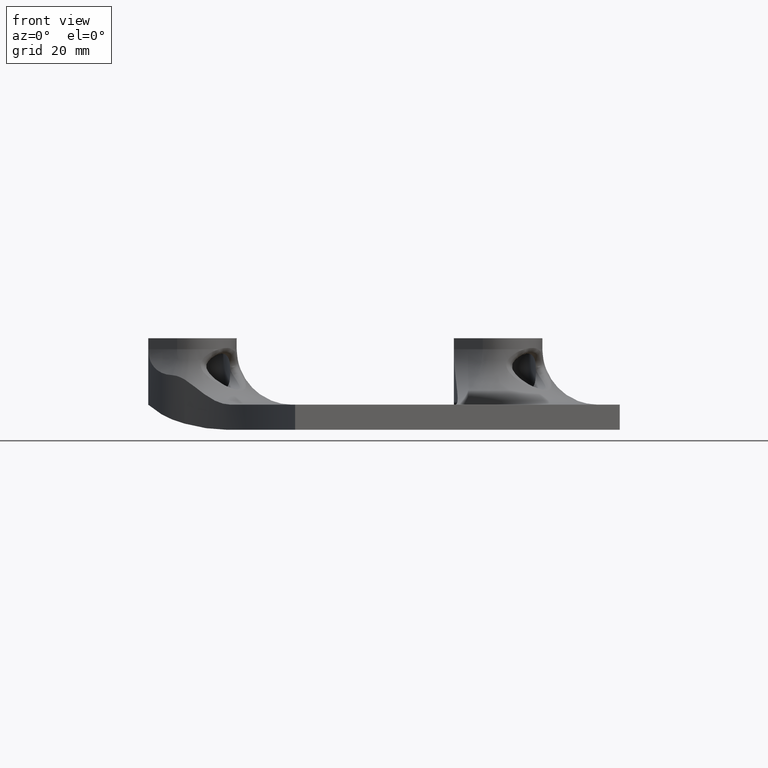
[diagram: clean part render]
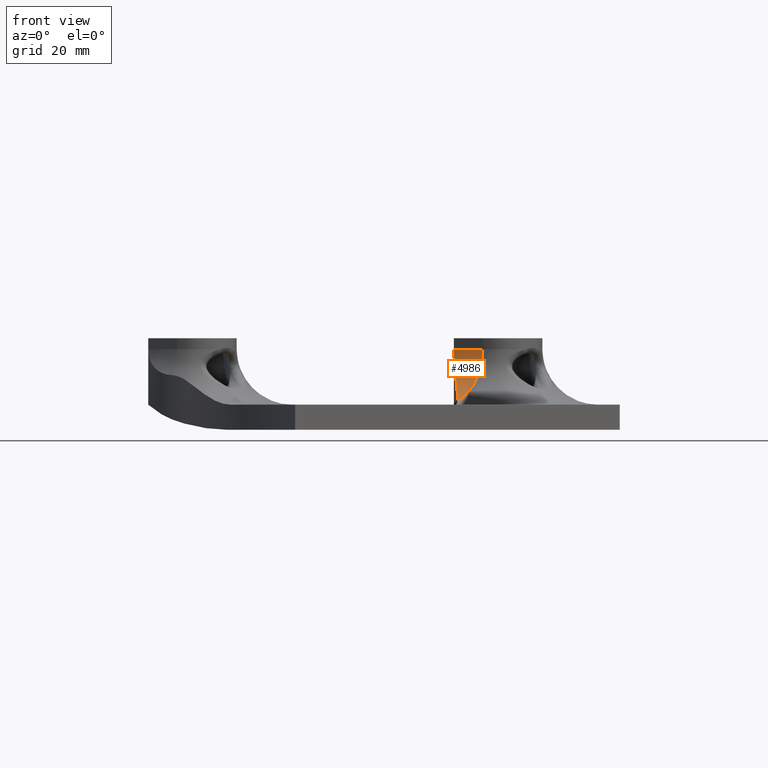
[diagram: same view with one face highlighted and labeled with its STEP entity id]
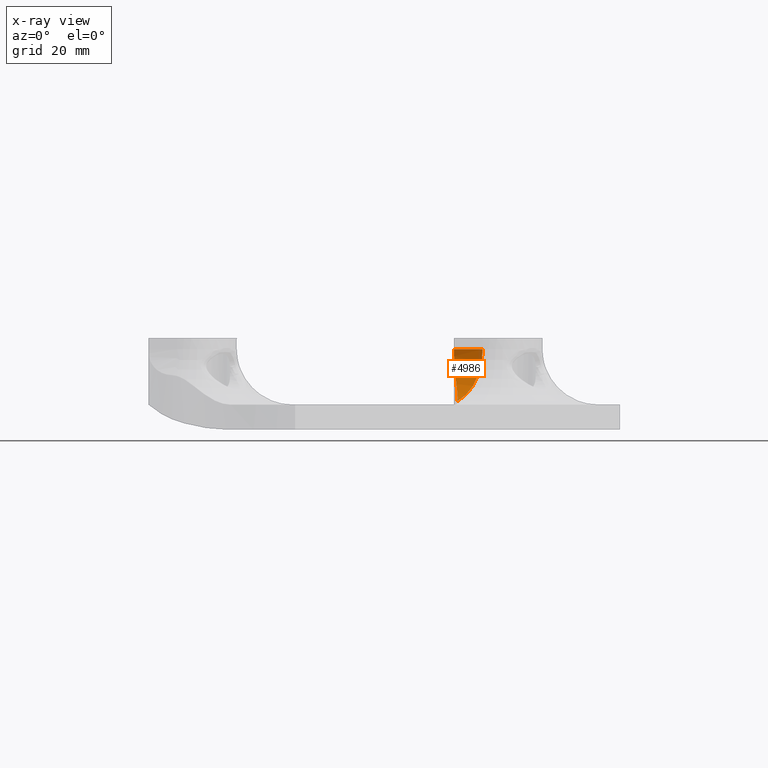
[diagram: x-ray of the same camera — body ghosted, the highlighted face saturated]
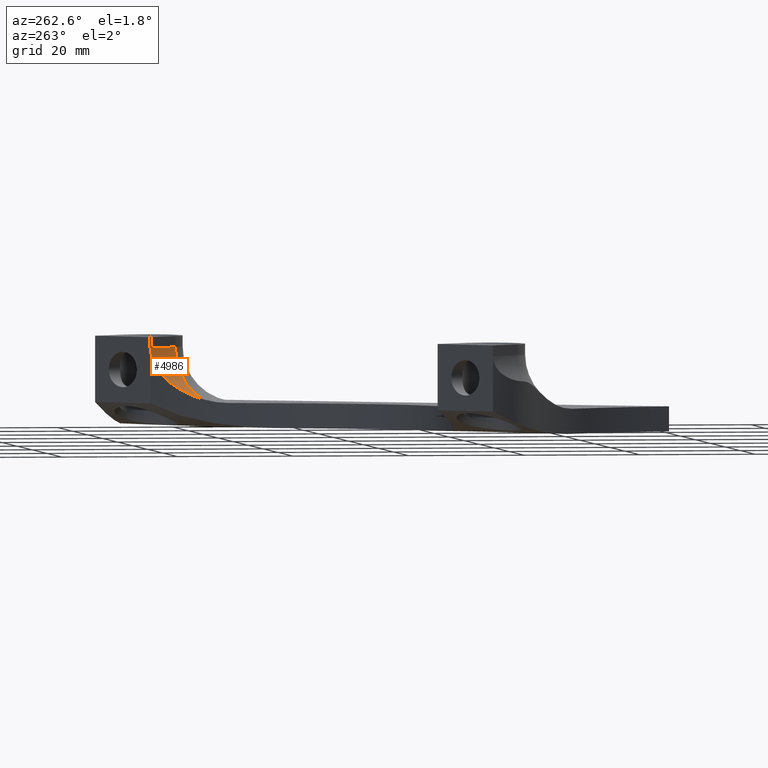
[diagram: same view with one face highlighted and labeled with its STEP entity id]
A machine part, front view. The second image highlights one B-rep face of the part: STEP entity #4986.
The next image is the same camera in x-ray: the body ghosted, the highlighted face saturated — about 0% of this face is hidden behind the body in this view.
A second angle (auxiliary view) of the same face is appended — the face is thin or edge-on in the first view.
In plain terms, the highlighted cylindrical surface (partial cylindrical patch) has radius 9.525 mm, axis along (-0.7071, 0.7071, 0).
Its self-contained STEP definition (entity closure, byte-faithful):
#752 = DIRECTION ( 'NONE',  ( -0.7071067811865470200, 0.7071067811865480200, 0.0000000000000000000 ) ) ;
#753 = DIRECTION ( 'NONE',  ( -0.7071067811865479100, -0.7071067811865471300, 0.0000000000000000000 ) ) ;
#756 = CARTESIAN_POINT ( 'NONE',  ( 11.71617354886791200, 80.86947227895663600, 9.525000000000003900 ) ) ;
#1345 = B_SPLINE_CURVE_WITH_KNOTS ( 'NONE', 3,
 ( #3640, #3635, #3634, #3633, #3632, #3631, #3630, #3629, #3628, #3627, #4085, #3204, #3203, #3202, #3201, #3200, #3199, #3198, #3197, #3196 ),
 .UNSPECIFIED., .F., .F.,
 ( 4, 2, 2, 2, 2, 2, 2, 2, 2, 4 ),
 ( 1.734723475976807100E-018, 0.001707270467940434800, 0.002560905701910651200, 0.003414540935880867800, 0.004268176169851084800, 0.005121811403821300600, 0.006829081871761707800, 0.008536352339702115900, 0.01024362280764252100, 0.01365816374352333600 ),
 .UNSPECIFIED. ) ;
#2028 = AXIS2_PLACEMENT_3D ( 'NONE', #756, #752, #753 ) ;
#2086 = ORIENTED_EDGE ( 'NONE', *, *, #4494, .T. ) ;
#2124 = ORIENTED_EDGE ( 'NONE', *, *, #4414, .T. ) ;
#2190 = CARTESIAN_POINT ( 'NONE',  ( 18.45136563966989800, 87.60466436975841000, 9.525000000000003900 ) ) ;
#2225 = CARTESIAN_POINT ( 'NONE',  ( 13.50161817136407500, 92.55441183806422600, 9.525000000000003900 ) ) ;
#2263 = CARTESIAN_POINT ( 'NONE',  ( 14.11972925908475900, 83.27302798917340000, 0.6271651568615626000 ) ) ;
#2354 = EDGE_LOOP ( 'NONE', ( #2921, #2086, #2124 ) ) ;
#2409 = CYLINDRICAL_SURFACE ( 'NONE', #2028, 9.525000000000007500 ) ;
#2430 = FACE_OUTER_BOUND ( 'NONE', #2354, .T. ) ;
#2536 = CIRCLE ( 'NONE', #4478, 9.525000000000005700 ) ;
#2559 = VECTOR ( 'NONE', #3763, 1000.000000000000000 ) ;
#2565 = LINE ( 'NONE', #3767, #2559 ) ;
#2921 = ORIENTED_EDGE ( 'NONE', *, *, #4522, .T. ) ;
#3003 = VERTEX_POINT ( 'NONE', #2263 ) ;
#3011 = VERTEX_POINT ( 'NONE', #2225 ) ;
#3030 = VERTEX_POINT ( 'NONE', #2190 ) ;
#3196 = CARTESIAN_POINT ( 'NONE',  ( 14.11972925908475900, 83.27302798917340000, 0.6271651568615626000 ) ) ;
#3197 = CARTESIAN_POINT ( 'NONE',  ( 14.14929892167664600, 84.38209512800317200, 0.9347430153144692400 ) ) ;
#3198 = CARTESIAN_POINT ( 'NONE',  ( 14.14081010131624600, 85.44629533891971100, 1.342319683538194800 ) ) ;
#3199 = CARTESIAN_POINT ( 'NONE',  ( 14.08397107251848000, 86.97392861772425500, 2.107365951750405300 ) ) ;
#3200 = CARTESIAN_POINT ( 'NONE',  ( 14.05762579370145500, 87.47188606967020500, 2.388638645891186600 ) ) ;
#3201 = CARTESIAN_POINT ( 'NONE',  ( 13.99263436131428100, 88.43968587821819900, 3.009976997566904600 ) ) ;
#3202 = CARTESIAN_POINT ( 'NONE',  ( 13.95451134026898300, 88.90188569264913100, 3.345058033734472400 ) ) ;
#3203 = CARTESIAN_POINT ( 'NONE',  ( 13.87127550937197600, 89.77709276889163400, 4.071200053435068100 ) ) ;
#3204 = CARTESIAN_POINT ( 'NONE',  ( 13.82612295303314900, 90.19026093099957100, 4.462070988022066600 ) ) ;
#3627 = CARTESIAN_POINT ( 'NONE',  ( 13.73400304215774000, 90.94724511075513400, 5.325268080946633700 ) ) ;
#3628 = CARTESIAN_POINT ( 'NONE',  ( 13.68892212595893700, 91.29037160034666000, 5.784907503885021300 ) ) ;
#3629 = CARTESIAN_POINT ( 'NONE',  ( 13.66699753353464600, 91.45034708841691900, 6.021872377824215600 ) ) ;
#3630 = CARTESIAN_POINT ( 'NONE',  ( 13.62550633069867200, 91.74415329948790500, 6.512005472769333300 ) ) ;
#3631 = CARTESIAN_POINT ( 'NONE',  ( 13.60593713440697300, 91.87800197281188700, 6.765162486957637900 ) ) ;
#3632 = CARTESIAN_POINT ( 'NONE',  ( 13.57047440009182200, 92.11527145053770500, 7.290413336815342800 ) ) ;
#3633 = CARTESIAN_POINT ( 'NONE',  ( 13.55471337737565200, 92.21781014797426200, 7.561370886112703400 ) ) ;
#3634 = CARTESIAN_POINT ( 'NONE',  ( 13.51614760463410800, 92.46542421454398700, 8.381080237213677000 ) ) ;
#3635 = CARTESIAN_POINT ( 'NONE',  ( 13.50161817136406500, 92.55441183806424000, 8.943620872490900100 ) ) ;
#3640 = CARTESIAN_POINT ( 'NONE',  ( 13.50161817136407500, 92.55441183806422600, 9.525000000000003900 ) ) ;
#3763 = DIRECTION ( 'NONE',  ( -0.7071067811865470200, 0.7071067811865480200, 0.0000000000000000000 ) ) ;
#3767 = CARTESIAN_POINT ( 'NONE',  ( 18.45136563966989800, 87.60466436975841000, 9.525000000000003900 ) ) ;
#3831 = DIRECTION ( 'NONE',  ( 0.7071067811865593400, 0.7071067811865355800, 0.0000000000000000000 ) ) ;
#3832 = DIRECTION ( 'NONE',  ( 0.7071067811865358000, -0.7071067811865592300, 0.0000000000000000000 ) ) ;
#3834 = CARTESIAN_POINT ( 'NONE',  ( 11.71617354886791200, 80.86947227895663600, 9.525000000000003900 ) ) ;
#4085 = CARTESIAN_POINT ( 'NONE',  ( 13.75723195949800200, 90.76342826268631800, 5.101995527698358400 ) ) ;
#4414 = EDGE_CURVE ( 'NONE', #3030, #3011, #2565, .T. ) ;
#4478 = AXIS2_PLACEMENT_3D ( 'NONE', #3834, #3832, #3831 ) ;
#4494 = EDGE_CURVE ( 'NONE', #3003, #3030, #2536, .T. ) ;
#4522 = EDGE_CURVE ( 'NONE', #3011, #3003, #1345, .T. ) ;
#4986 = ADVANCED_FACE ( 'NONE', ( #2430 ), #2409, .F. ) ;